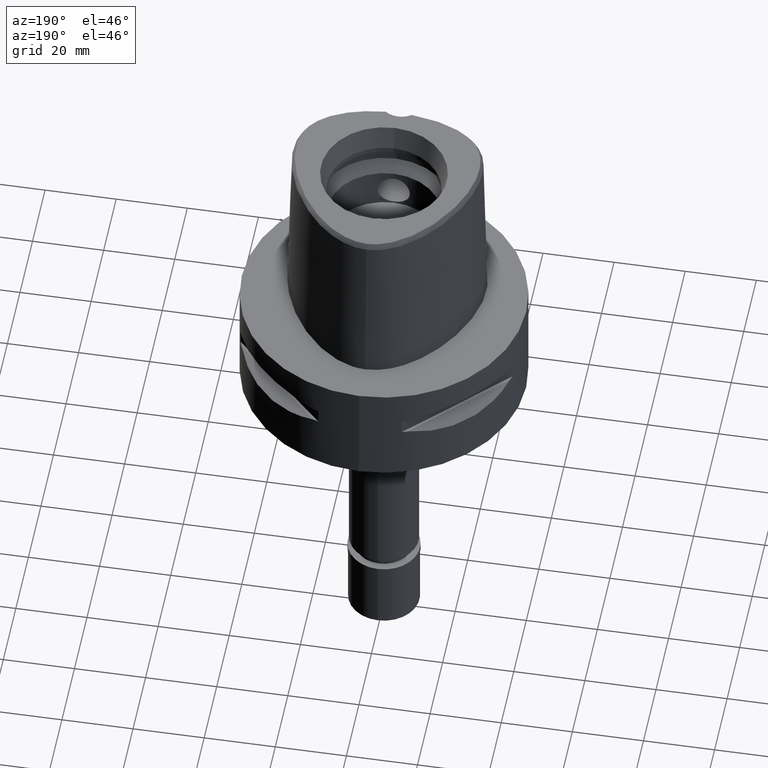
[diagram: clean part render]
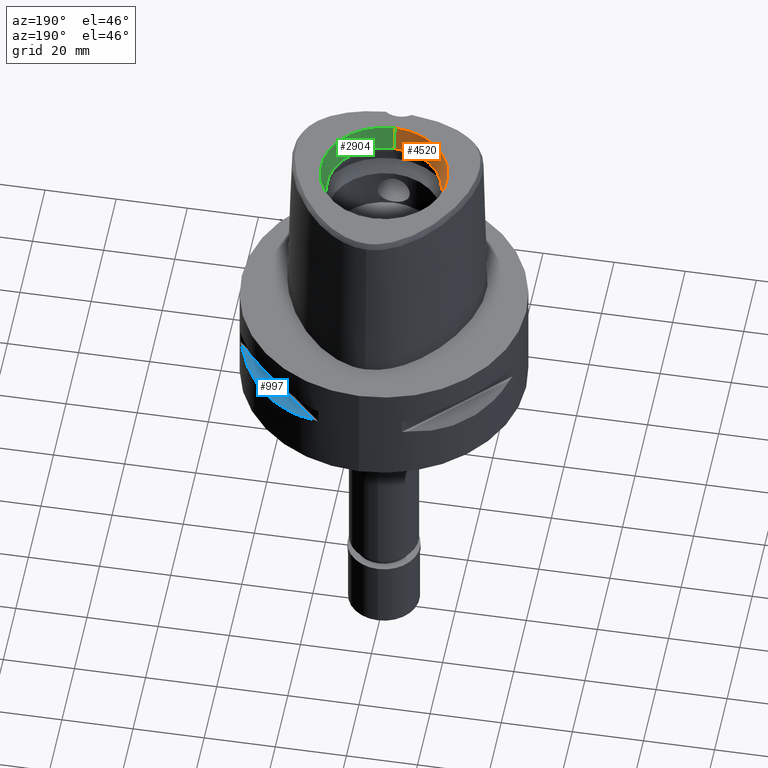
[diagram: same view with three faces highlighted in distinct colors, each labeled with its STEP entity id]
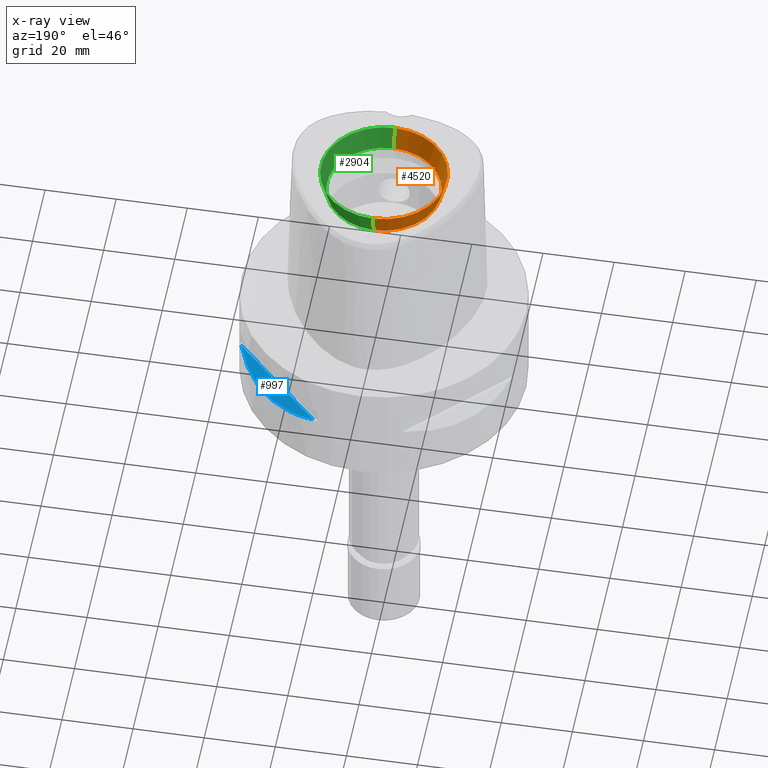
[diagram: x-ray of the same camera — body ghosted, the three highlighted faces saturated]
A machine part, auxiliary view with three faces highlighted in distinct colors.
The next image is the same camera in x-ray (body ghosted, the three faces saturated) — at least one of them is partly hidden behind the body in this view.
Their STEP definitions:

[orange] entity #4520 — the highlighted conical surface has half-angle 15 deg.
#132 = ORIENTED_EDGE ( 'NONE', *, *, #4135, .T. ) ;
#139 = DIRECTION ( 'NONE',  ( 0.0000000000000000000, 0.0000000000000000000, 1.000000000000000000 ) ) ;
#177 = VERTEX_POINT ( 'NONE', #4066 ) ;
#219 = CARTESIAN_POINT ( 'NONE',  ( 0.0000000000000000000, 16.00000000000000000, 41.60000000000000142 ) ) ;
#250 = ORIENTED_EDGE ( 'NONE', *, *, #2528, .T. ) ;
#288 = CIRCLE ( 'NONE', #4679, 17.71487483155999954 ) ;
#667 = DIRECTION ( 'NONE',  ( 0.0000000000000000000, 0.0000000000000000000, 1.000000000000000000 ) ) ;
#913 = CARTESIAN_POINT ( 'NONE',  ( 0.0000000000000000000, 0.0000000000000000000, 41.60000000000000142 ) ) ;
#981 = CARTESIAN_POINT ( 'NONE',  ( 0.0000000000000000000, 16.00000000000000000, 41.60000000000000142 ) ) ;
#1067 = DIRECTION ( 'NONE',  ( 0.0000000000000000000, 0.2588190451025869088, 0.9659258262890505486 ) ) ;
#1404 = VERTEX_POINT ( 'NONE', #1502 ) ;
#1472 = AXIS2_PLACEMENT_3D ( 'NONE', #5025, #667, #4975 ) ;
#1502 = CARTESIAN_POINT ( 'NONE',  ( 0.0000000000000000000, -17.71487483155999954, 48.00000000000000000 ) ) ;
#1551 = CIRCLE ( 'NONE', #2802, 16.00000000000000000 ) ;
#1586 = CARTESIAN_POINT ( 'NONE',  ( 0.0000000000000000000, 0.0000000000000000000, 48.00000000000000000 ) ) ;
#1645 = VECTOR ( 'NONE', #1067, 1000.000000000000000 ) ;
#1757 = ORIENTED_EDGE ( 'NONE', *, *, #3814, .F. ) ;
#1904 = CARTESIAN_POINT ( 'NONE',  ( 0.0000000000000000000, 17.71487483155999954, 48.00000000000000000 ) ) ;
#2342 = ORIENTED_EDGE ( 'NONE', *, *, #4676, .F. ) ;
#2528 = EDGE_CURVE ( 'NONE', #2793, #2551, #4226, .T. ) ;
#2543 = VECTOR ( 'NONE', #5042, 1000.000000000000000 ) ;
#2551 = VERTEX_POINT ( 'NONE', #1904 ) ;
#2657 = CARTESIAN_POINT ( 'NONE',  ( 0.0000000000000000000, -16.00000000000000000, 41.60000000000000142 ) ) ;
#2727 = DIRECTION ( 'NONE',  ( 0.0000000000000000000, 1.000000000000000000, 0.0000000000000000000 ) ) ;
#2765 = EDGE_LOOP ( 'NONE', ( #1757, #2342, #250, #132 ) ) ;
#2793 = VERTEX_POINT ( 'NONE', #219 ) ;
#2802 = AXIS2_PLACEMENT_3D ( 'NONE', #913, #139, #4929 ) ;
#2878 = CONICAL_SURFACE ( 'NONE', #1472, 16.85743741578000154, 0.2617993877991000029 ) ;
#3018 = FACE_OUTER_BOUND ( 'NONE', #2765, .T. ) ;
#3467 = LINE ( 'NONE', #2657, #2543 ) ;
#3814 = EDGE_CURVE ( 'NONE', #177, #1404, #3467, .T. ) ;
#3934 = DIRECTION ( 'NONE',  ( 0.0000000000000000000, 0.0000000000000000000, 1.000000000000000000 ) ) ;
#4066 = CARTESIAN_POINT ( 'NONE',  ( 0.0000000000000000000, -16.00000000000000000, 41.60000000000000142 ) ) ;
#4135 = EDGE_CURVE ( 'NONE', #2551, #1404, #288, .T. ) ;
#4226 = LINE ( 'NONE', #981, #1645 ) ;
#4520 = ADVANCED_FACE ( 'NONE', ( #3018 ), #2878, .F. ) ;
#4676 = EDGE_CURVE ( 'NONE', #2793, #177, #1551, .T. ) ;
#4679 = AXIS2_PLACEMENT_3D ( 'NONE', #1586, #3934, #2727 ) ;
#4929 = DIRECTION ( 'NONE',  ( 0.0000000000000000000, 1.000000000000000000, 0.0000000000000000000 ) ) ;
#4975 = DIRECTION ( 'NONE',  ( 0.0000000000000000000, 1.000000000000000000, 0.0000000000000000000 ) ) ;
#5025 = CARTESIAN_POINT ( 'NONE',  ( 0.0000000000000000000, 0.0000000000000000000, 44.79999999999999716 ) ) ;
#5042 = DIRECTION ( 'NONE',  ( 0.0000000000000000000, -0.2588190451025869088, 0.9659258262890505486 ) ) ;

[blue] entity #997 — the highlighted planar face has unit normal (-0.3536, -0.3536, -0.866).
#157 = CARTESIAN_POINT ( 'NONE',  ( 21.52391145898924663, 33.71529052282357952, -15.78742602700012831 ) ) ;
#232 = CARTESIAN_POINT ( 'NONE',  ( 7.814027845251999338, 43.16936690458000214, -14.05000000000000071 ) ) ;
#455 = VECTOR ( 'NONE', #1867, 1000.000000000000114 ) ;
#555 = VERTEX_POINT ( 'NONE', #1399 ) ;
#596 = CARTESIAN_POINT ( 'NONE',  ( 21.50560509406274434, 33.72697758561020720, -15.78472370821746118 ) ) ;
#619 = CARTESIAN_POINT ( 'NONE',  ( 32.16767032371209467, 23.95303639237203797, -16.14729882780224202 ) ) ;
#785 = VERTEX_POINT ( 'NONE', #2099 ) ;
#919 = CARTESIAN_POINT ( 'NONE',  ( 37.74622163926999718, 13.23717311056000057, -14.05000000000000071 ) ) ;
#955 = CARTESIAN_POINT ( 'NONE',  ( 22.02254759438460141, 33.39247868354773630, -15.85920599531294783 ) ) ;
#957 = EDGE_CURVE ( 'NONE', #785, #555, #4112, .T. ) ;
#980 = CARTESIAN_POINT ( 'NONE',  ( 25.62819065486898396, 30.77249687754148866, -16.26160051743016055 ) ) ;
#997 = ADVANCED_FACE ( 'NONE', ( #2195 ), #3733, .F. ) ;
#1023 = CARTESIAN_POINT ( 'NONE',  ( 33.91944728533341191, 21.20128033779756294, -15.73905907260447101 ) ) ;
#1399 = CARTESIAN_POINT ( 'NONE',  ( 13.23717311056000057, 37.74622163926999718, -14.05000000000000071 ) ) ;
#1408 = CARTESIAN_POINT ( 'NONE',  ( 23.60097336453497618, 32.30995221951452834, -16.06165603927751917 ) ) ;
#1421 = CARTESIAN_POINT ( 'NONE',  ( 35.11589783530617126, 19.18269457493275354, -15.40342377741110091 ) ) ;
#1430 = CARTESIAN_POINT ( 'NONE',  ( 18.89342208871625317, 35.39137327286631063, -15.39779115588368619 ) ) ;
#1618 = ORIENTED_EDGE ( 'NONE', *, *, #957, .T. ) ;
#1828 = CARTESIAN_POINT ( 'NONE',  ( 13.23717311056000057, 37.74622163926999718, -14.05000000000000071 ) ) ;
#1867 = DIRECTION ( 'NONE',  ( -0.7071067811865474617, 0.7071067811865474617, 0.0000000000000000000 ) ) ;
#2099 = CARTESIAN_POINT ( 'NONE',  ( 37.74622163926999718, 13.23717311056000057, -14.05000000000000071 ) ) ;
#2127 = CARTESIAN_POINT ( 'NONE',  ( 36.35358138589326416, 16.81132763100200123, -14.94059947015123058 ) ) ;
#2195 = FACE_OUTER_BOUND ( 'NONE', #2517, .T. ) ;
#2517 = EDGE_LOOP ( 'NONE', ( #3140, #1618 ) ) ;
#2533 = CARTESIAN_POINT ( 'NONE',  ( 27.25214773984120598, 29.31642813391417590, -16.33014064577303515 ) ) ;
#2560 = CARTESIAN_POINT ( 'NONE',  ( 21.56243030661663695, 33.69065616467183588, -15.79309434609252705 ) ) ;
#2584 = CARTESIAN_POINT ( 'NONE',  ( 21.75464223249287699, 33.56701934068274795, -15.82109001420633732 ) ) ;
#2626 = CARTESIAN_POINT ( 'NONE',  ( 34.44518065740276569, 20.34261333234974245, -15.60313948593977074 ) ) ;
#2940 = CARTESIAN_POINT ( 'NONE',  ( 16.14402792110260521, 36.72682052670324993, -14.82054974552761095 ) ) ;
#3008 = CARTESIAN_POINT ( 'NONE',  ( 34.09685321779860345, 20.91613153242115075, -15.69507322892878953 ) ) ;
#3021 = DIRECTION ( 'NONE',  ( 0.0000000000000000000, -0.9258200997725358761, 0.3779644730092654448 ) ) ;
#3140 = ORIENTED_EDGE ( 'NONE', *, *, #3927, .F. ) ;
#3364 = CARTESIAN_POINT ( 'NONE',  ( 37.74622163926999718, 13.23717311056000057, -14.05000000000000071 ) ) ;
#3733 = PLANE ( 'NONE',  #4323 ) ;
#3786 = CARTESIAN_POINT ( 'NONE',  ( 33.76566745675005166, 21.44484052678287256, -15.77571175125579828 ) ) ;
#3829 = LINE ( 'NONE', #3364, #455 ) ;
#3927 = EDGE_CURVE ( 'NONE', #785, #555, #3829, .T. ) ;
#4086 = CARTESIAN_POINT ( 'NONE',  ( 37.23659447744844897, 14.69039122918117357, -14.43521939500984885 ) ) ;
#4112 = B_SPLINE_CURVE_WITH_KNOTS ( 'NONE', 3,
 ( #919, #4086, #2127, #1421, #2626, #3008, #1023, #4964, #4574, #3786, #4952, #619, #4586, #2533, #980, #1408, #4129, #955, #2584, #4155, #2560, #157, #596, #1430, #2940, #1828 ),
 .UNSPECIFIED., .F., .F.,
 ( 4, 1, 1, 1, 1, 1, 1, 2, 2, 2, 1, 1, 1, 1, 1, 1, 2, 2, 4 ),
 ( 0.0000000000000000000, 0.1249999999999938660, 0.1874999999999906741, 0.2187499999999889255, 0.2343749999999879541, 0.2421874999999872879, 0.2460937499999869549, 0.2480468749999869271, 0.2499999999999869271, 0.4999999999999968914, 0.6250000000000018874, 0.6875000000000044409, 0.7187500000000057732, 0.7343750000000064393, 0.7421875000000067724, 0.7460937500000065503, 0.7480468750000062172, 0.7500000000000058842, 1.000000000000000000 ),
 .UNSPECIFIED. ) ;
#4129 = CARTESIAN_POINT ( 'NONE',  ( 22.55421454656803704, 33.03835700910301654, -15.93168855142971374 ) ) ;
#4155 = CARTESIAN_POINT ( 'NONE',  ( 21.62017158009700069, 33.65365962422837498, -15.80156334789098160 ) ) ;
#4323 = AXIS2_PLACEMENT_3D ( 'NONE', #232, #4483, #3021 ) ;
#4483 = DIRECTION ( 'NONE',  ( -0.3535533905933054277, -0.3535533905933049836, -0.8660254037844130615 ) ) ;
#4574 = CARTESIAN_POINT ( 'NONE',  ( 33.79139713908593023, 21.40429668490282467, -15.76966389594722528 ) ) ;
#4586 = CARTESIAN_POINT ( 'NONE',  ( 30.34851826270024944, 26.21995747455423853, -16.33009976521772799 ) ) ;
#4952 = CARTESIAN_POINT ( 'NONE',  ( 33.75216276490046852, 21.46607685731544990, -15.77886817953061005 ) ) ;
#4964 = CARTESIAN_POINT ( 'NONE',  ( 33.82993376593505275, 21.34345216682098112, -15.76055673748761166 ) ) ;

[green] entity #2904 — the highlighted conical surface has half-angle 15 deg.
#177 = VERTEX_POINT ( 'NONE', #4066 ) ;
#219 = CARTESIAN_POINT ( 'NONE',  ( 0.0000000000000000000, 16.00000000000000000, 41.60000000000000142 ) ) ;
#294 = DIRECTION ( 'NONE',  ( 0.0000000000000000000, 0.0000000000000000000, 1.000000000000000000 ) ) ;
#334 = ORIENTED_EDGE ( 'NONE', *, *, #2528, .F. ) ;
#611 = DIRECTION ( 'NONE',  ( 0.0000000000000000000, -1.000000000000000000, 0.0000000000000000000 ) ) ;
#981 = CARTESIAN_POINT ( 'NONE',  ( 0.0000000000000000000, 16.00000000000000000, 41.60000000000000142 ) ) ;
#1067 = DIRECTION ( 'NONE',  ( 0.0000000000000000000, 0.2588190451025869088, 0.9659258262890505486 ) ) ;
#1099 = CARTESIAN_POINT ( 'NONE',  ( 0.0000000000000000000, 0.0000000000000000000, 44.79999999999999716 ) ) ;
#1366 = AXIS2_PLACEMENT_3D ( 'NONE', #1099, #4988, #3410 ) ;
#1393 = EDGE_CURVE ( 'NONE', #177, #2793, #4074, .T. ) ;
#1404 = VERTEX_POINT ( 'NONE', #1502 ) ;
#1450 = ORIENTED_EDGE ( 'NONE', *, *, #1393, .F. ) ;
#1502 = CARTESIAN_POINT ( 'NONE',  ( 0.0000000000000000000, -17.71487483155999954, 48.00000000000000000 ) ) ;
#1640 = CIRCLE ( 'NONE', #2547, 17.71487483155999954 ) ;
#1645 = VECTOR ( 'NONE', #1067, 1000.000000000000000 ) ;
#1904 = CARTESIAN_POINT ( 'NONE',  ( 0.0000000000000000000, 17.71487483155999954, 48.00000000000000000 ) ) ;
#2335 = ORIENTED_EDGE ( 'NONE', *, *, #4238, .T. ) ;
#2455 = DIRECTION ( 'NONE',  ( 0.0000000000000000000, 0.0000000000000000000, 1.000000000000000000 ) ) ;
#2528 = EDGE_CURVE ( 'NONE', #2793, #2551, #4226, .T. ) ;
#2530 = DIRECTION ( 'NONE',  ( 0.0000000000000000000, -1.000000000000000000, 0.0000000000000000000 ) ) ;
#2543 = VECTOR ( 'NONE', #5042, 1000.000000000000000 ) ;
#2547 = AXIS2_PLACEMENT_3D ( 'NONE', #4849, #2455, #2530 ) ;
#2551 = VERTEX_POINT ( 'NONE', #1904 ) ;
#2627 = CARTESIAN_POINT ( 'NONE',  ( 0.0000000000000000000, 0.0000000000000000000, 41.60000000000000142 ) ) ;
#2657 = CARTESIAN_POINT ( 'NONE',  ( 0.0000000000000000000, -16.00000000000000000, 41.60000000000000142 ) ) ;
#2793 = VERTEX_POINT ( 'NONE', #219 ) ;
#2854 = EDGE_LOOP ( 'NONE', ( #334, #1450, #2938, #2335 ) ) ;
#2904 = ADVANCED_FACE ( 'NONE', ( #3878 ), #4426, .F. ) ;
#2938 = ORIENTED_EDGE ( 'NONE', *, *, #3814, .T. ) ;
#3011 = AXIS2_PLACEMENT_3D ( 'NONE', #2627, #294, #611 ) ;
#3410 = DIRECTION ( 'NONE',  ( 0.0000000000000000000, 1.000000000000000000, 0.0000000000000000000 ) ) ;
#3467 = LINE ( 'NONE', #2657, #2543 ) ;
#3814 = EDGE_CURVE ( 'NONE', #177, #1404, #3467, .T. ) ;
#3878 = FACE_OUTER_BOUND ( 'NONE', #2854, .T. ) ;
#4066 = CARTESIAN_POINT ( 'NONE',  ( 0.0000000000000000000, -16.00000000000000000, 41.60000000000000142 ) ) ;
#4074 = CIRCLE ( 'NONE', #3011, 16.00000000000000000 ) ;
#4226 = LINE ( 'NONE', #981, #1645 ) ;
#4238 = EDGE_CURVE ( 'NONE', #1404, #2551, #1640, .T. ) ;
#4426 = CONICAL_SURFACE ( 'NONE', #1366, 16.85743741578000154, 0.2617993877991000029 ) ;
#4849 = CARTESIAN_POINT ( 'NONE',  ( 0.0000000000000000000, 0.0000000000000000000, 48.00000000000000000 ) ) ;
#4988 = DIRECTION ( 'NONE',  ( 0.0000000000000000000, 0.0000000000000000000, 1.000000000000000000 ) ) ;
#5042 = DIRECTION ( 'NONE',  ( 0.0000000000000000000, -0.2588190451025869088, 0.9659258262890505486 ) ) ;